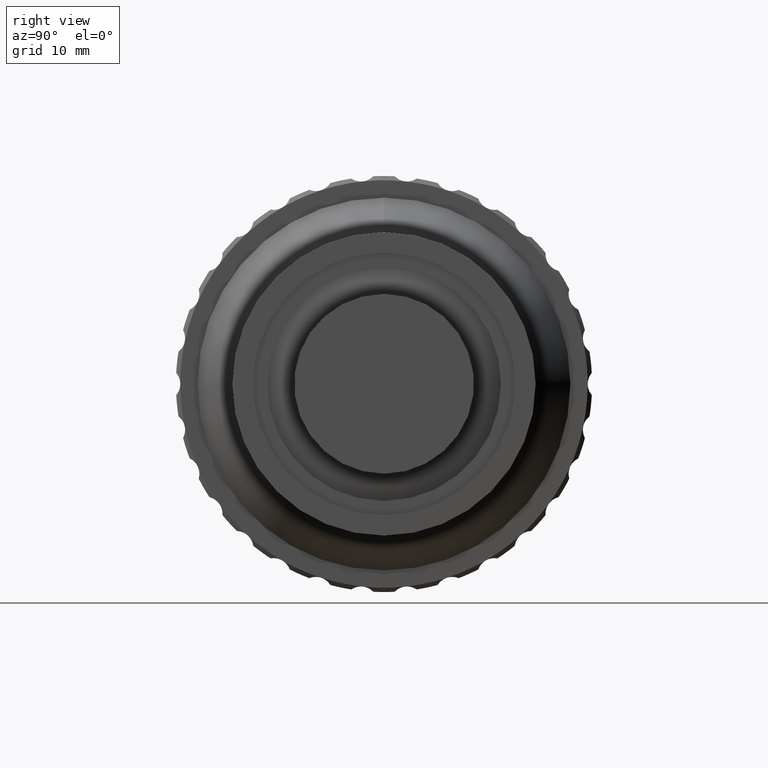
[diagram: clean part render]
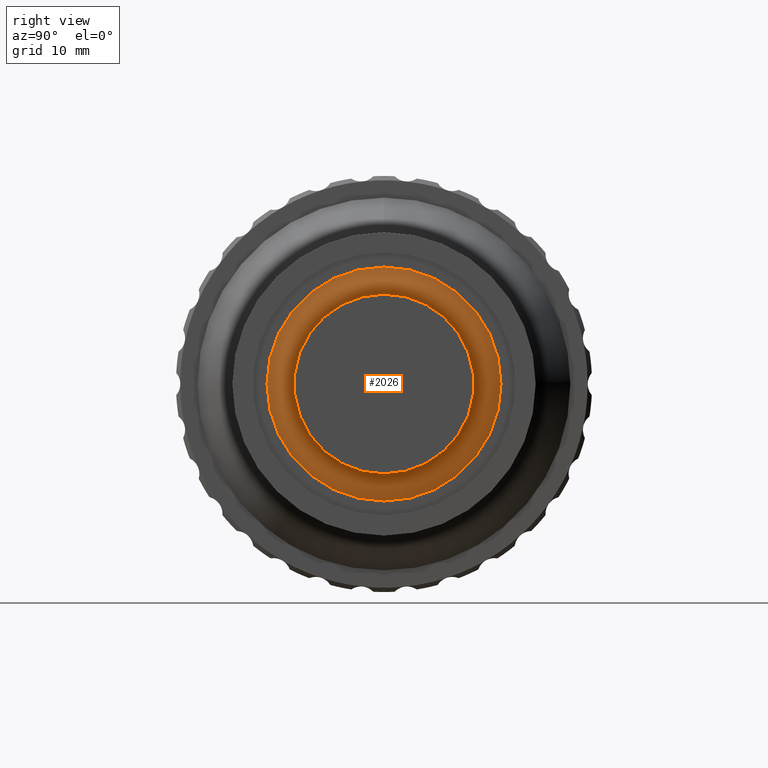
[diagram: same view with one face highlighted and labeled with its STEP entity id]
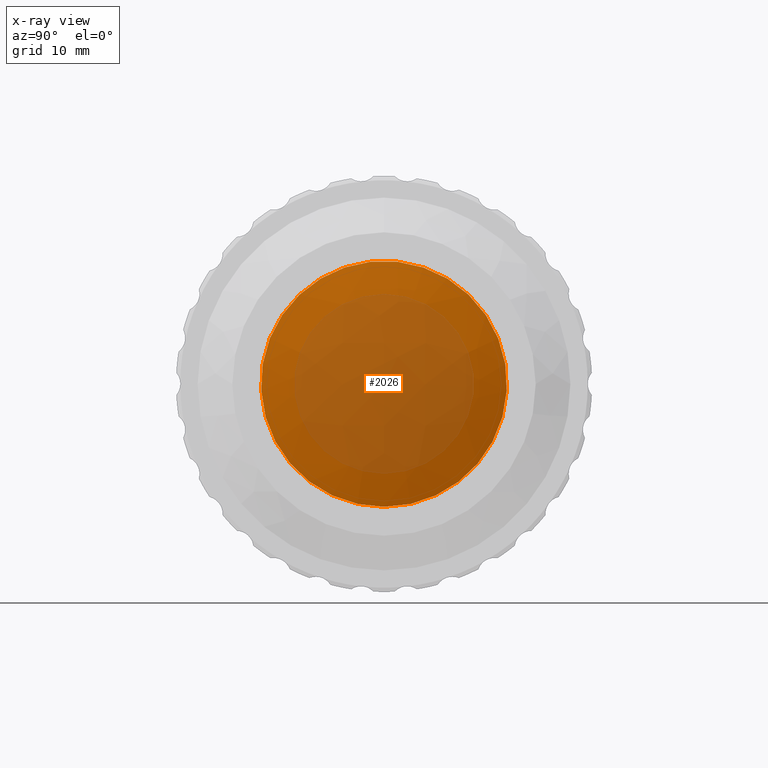
[diagram: x-ray of the same camera — body ghosted, the highlighted face saturated]
A machine part, right view. The second image highlights one B-rep face of the part: STEP entity #2026.
The next image is the same camera in x-ray: the body ghosted, the highlighted face saturated — about 53% of this face is hidden behind the body in this view.
In plain terms, the highlighted face is a freeform B-spline surface patch.
Its self-contained STEP definition (entity closure, byte-faithful):
#53 = CARTESIAN_POINT ( 'NONE',  ( 35.74996561179025178, 14.45869139187757391, -13.92693175559914565 ) ) ;
#143 = VERTEX_POINT ( 'NONE', #1276 ) ;
#390 = EDGE_CURVE ( 'NONE', #143, #143, #3000, .T. ) ;
#704 = CARTESIAN_POINT ( 'NONE',  ( 40.82365581011941202, 4.954914300802995442, -5.008652885120672416 ) ) ;
#751 = CARTESIAN_POINT ( 'NONE',  ( 35.78662962196697350, -14.39764303072458773, 13.85419350753924483 ) ) ;
#815 = CARTESIAN_POINT ( 'NONE',  ( 37.67187377653081626, 0.000000000000000000, 0.000000000000000000 ) ) ;
#1116 = CARTESIAN_POINT ( 'NONE',  ( 38.23758524896135924, -14.39764303072458773, -4.779955715644945258 ) ) ;
#1140 = CARTESIAN_POINT ( 'NONE',  ( 40.83107197185132975, 4.954914300802995442, 4.924072490226329535 ) ) ;
#1227 =( BOUNDED_SURFACE ( )  B_SPLINE_SURFACE ( 3, 3, ( 
 ( #3295, #1116, #4784, #751 ),
 ( #1452, #1428, #4043, #2949 ),
 ( #2230, #704, #1140, #1908 ),
 ( #53, #1524, #4143, #2994 ) ),
 .UNSPECIFIED., .F., .F., .T. ) 
 B_SPLINE_SURFACE_WITH_KNOTS ( ( 4, 4 ),
 ( 4, 4 ),
 ( 0.000000000000000000, 1.000000000000000000 ),
 ( 0.000000000000000000, 1.000000000000000000 ),
 .UNSPECIFIED. ) 
 GEOMETRIC_REPRESENTATION_ITEM ( )  RATIONAL_B_SPLINE_SURFACE ( (
 ( 1.000000000000000000, 0.9770671640187087448, 0.9770671640187087448, 1.000000000000000000),
 ( 0.9769376705360244273, 0.9545337191736770199, 0.9545337191736770199, 0.9769376705360244273),
 ( 0.9769376705360244273, 0.9545337191736770199, 0.9545337191736770199, 0.9769376705360244273),
 ( 1.000000000000000000, 0.9770671640187087448, 0.9770671640187087448, 1.000000000000000000) ) ) 
 REPRESENTATION_ITEM ( '' )  SURFACE ( )  );
#1276 = CARTESIAN_POINT ( 'NONE',  ( 37.67187377653081626, 0.000000000000000000, -14.18165801419904248 ) ) ;
#1428 = CARTESIAN_POINT ( 'NONE',  ( 40.82934745169759339, -4.890931991099921383, -5.009156221084569260 ) ) ;
#1452 = CARTESIAN_POINT ( 'NONE',  ( 38.23912721828864392, -4.890931991099920495, -14.59923847679905684 ) ) ;
#1524 = CARTESIAN_POINT ( 'NONE',  ( 38.22090411176657199, 14.45869139187757391, -4.778480532052747698 ) ) ;
#1908 = CARTESIAN_POINT ( 'NONE',  ( 38.25543411461947585, 4.954914300802995442, 14.51704794156107781 ) ) ;
#2026 = ADVANCED_FACE ( 'NONE', ( #3995 ), #1227, .T. ) ;
#2230 = CARTESIAN_POINT ( 'NONE',  ( 38.23369585028554241, 4.954914300802995442, -14.59777149883978886 ) ) ;
#2536 = DIRECTION ( 'NONE',  ( 1.000000000000000000, 0.000000000000000000, 0.000000000000000000 ) ) ;
#2612 = AXIS2_PLACEMENT_3D ( 'NONE', #815, #2536, #4786 ) ;
#2949 = CARTESIAN_POINT ( 'NONE',  ( 38.26086766717208576, -4.890931991099920495, 14.51850680734519194 ) ) ;
#2994 = CARTESIAN_POINT ( 'NONE',  ( 35.77070489544652787, 14.45869139187757568, 13.84991784471698573 ) ) ;
#3000 = CIRCLE ( 'NONE', #2612, 14.18165801419904248 ) ;
#3063 = ORIENTED_EDGE ( 'NONE', *, *, #390, .T. ) ;
#3174 = EDGE_LOOP ( 'NONE', ( #3063 ) ) ;
#3295 = CARTESIAN_POINT ( 'NONE',  ( 35.76588393580455261, -14.39764303072458951, -13.93123119368991247 ) ) ;
#3995 = FACE_OUTER_BOUND ( 'NONE', #3174, .T. ) ;
#4043 = CARTESIAN_POINT ( 'NONE',  ( 40.83676435870394528, -4.890931991099921383, 4.924567326428796576 ) ) ;
#4143 = CARTESIAN_POINT ( 'NONE',  ( 38.22797946421589188, 14.45869139187757568, 4.697787024304059145 ) ) ;
#4784 = CARTESIAN_POINT ( 'NONE',  ( 38.24466278567066269, -14.39764303072458596, 4.699237296684874110 ) ) ;
#4786 = DIRECTION ( 'NONE',  ( 0.000000000000000000, 0.000000000000000000, -1.000000000000000000 ) ) ;